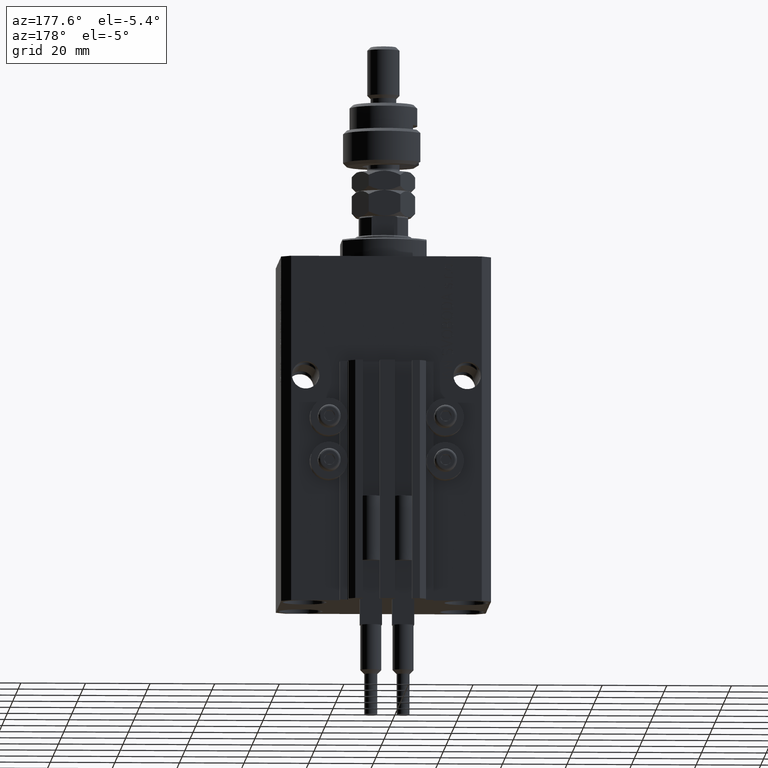
[diagram: clean part render]
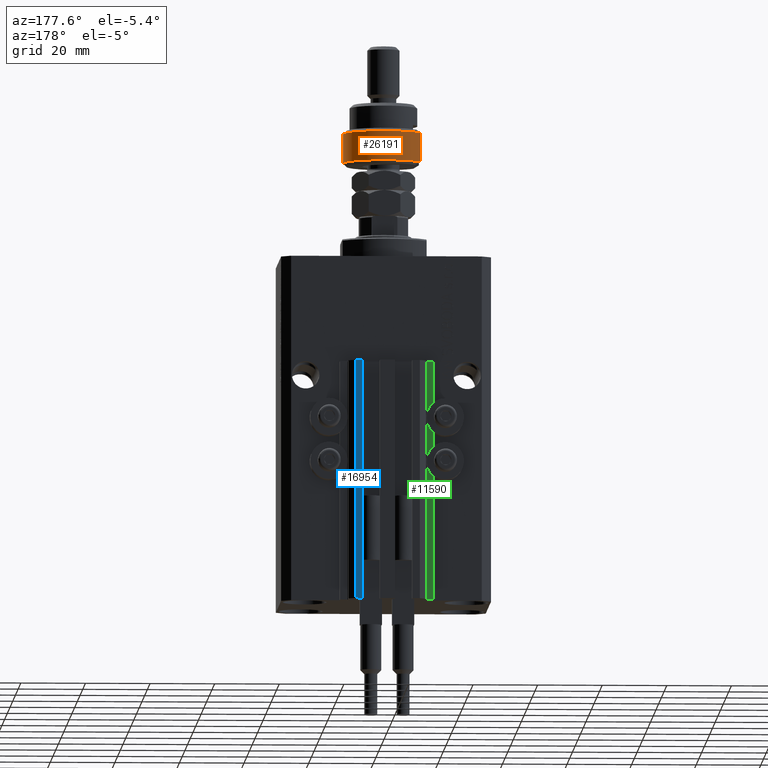
[diagram: same view with three faces highlighted in distinct colors, each labeled with its STEP entity id]
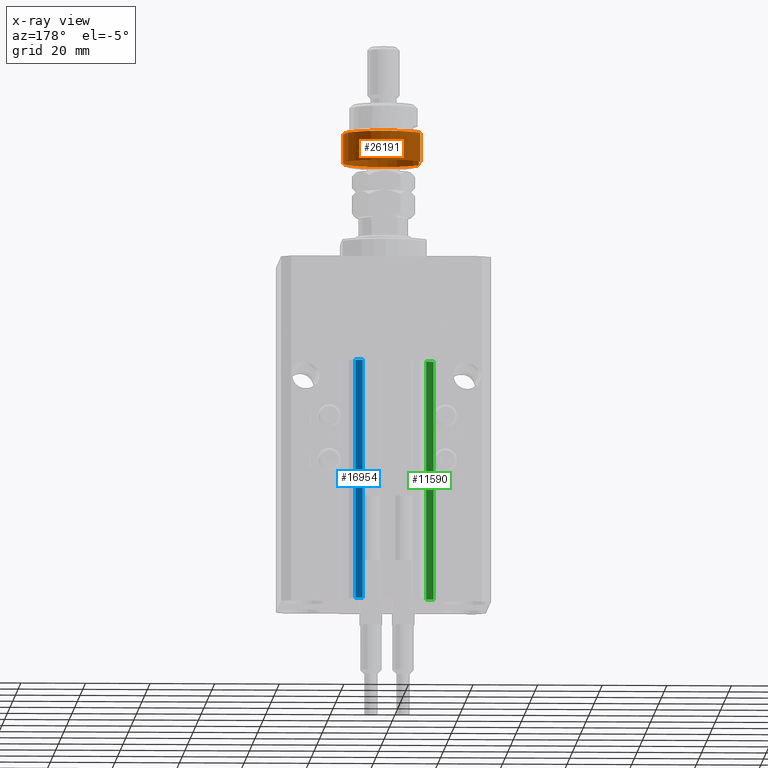
[diagram: x-ray of the same camera — body ghosted, the three highlighted faces saturated]
A machine part, auxiliary view with three faces highlighted in distinct colors.
The next image is the same camera in x-ray (body ghosted, the three faces saturated) — at least one of them is partly hidden behind the body in this view.
Their STEP definitions:

[orange] entity #26191 — the highlighted cylindrical surface (partial cylindrical patch) has radius 12.5 mm, axis along (-0, -0, -1).
#654 = CARTESIAN_POINT ( 'NONE',  ( 0.000000000000000000, 0.000000000000000000, 0.9999999999999956701 ) ) ;
#1412 = DIRECTION ( 'NONE',  ( -0.000000000000000000, -0.000000000000000000, 1.000000000000000000 ) ) ;
#1427 = VERTEX_POINT ( 'NONE', #45096 ) ;
#3541 = CARTESIAN_POINT ( 'NONE',  ( 0.000000000000000000, 0.000000000000000000, 0.9999999999999956701 ) ) ;
#5428 = DIRECTION ( 'NONE',  ( -0.000000000000000000, -0.000000000000000000, -1.000000000000000000 ) ) ;
#8626 = VERTEX_POINT ( 'NONE', #16693 ) ;
#11574 = DIRECTION ( 'NONE',  ( -0.000000000000000000, -0.000000000000000000, -1.000000000000000000 ) ) ;
#12813 = EDGE_LOOP ( 'NONE', ( #49277, #32848, #45773, #14371, #16661 ) ) ;
#13000 = VERTEX_POINT ( 'NONE', #26528 ) ;
#14371 = ORIENTED_EDGE ( 'NONE', *, *, #30370, .T. ) ;
#15234 = AXIS2_PLACEMENT_3D ( 'NONE', #654, #1412, #32517 ) ;
#15689 = AXIS2_PLACEMENT_3D ( 'NONE', #38623, #42723, #42983 ) ;
#16661 = ORIENTED_EDGE ( 'NONE', *, *, #36678, .T. ) ;
#16693 = CARTESIAN_POINT ( 'NONE',  ( -11.22497216032182443, 5.500000000000000000, 10.00000000000000000 ) ) ;
#17099 = DIRECTION ( 'NONE',  ( 1.000000000000000000, 0.000000000000000000, 0.000000000000000000 ) ) ;
#18252 = EDGE_CURVE ( 'NONE', #8626, #37642, #41377, .T. ) ;
#20694 = CARTESIAN_POINT ( 'NONE',  ( 0.000000000000000000, 0.000000000000000000, 10.00000000000000000 ) ) ;
#24724 = AXIS2_PLACEMENT_3D ( 'NONE', #20694, #24817, #17099 ) ;
#24817 = DIRECTION ( 'NONE',  ( 0.000000000000000000, 0.000000000000000000, -1.000000000000000000 ) ) ;
#24967 = CARTESIAN_POINT ( 'NONE',  ( -11.22497216032182443, 5.500000000000000000, 12.50000000000000000 ) ) ;
#26088 = CARTESIAN_POINT ( 'NONE',  ( -11.22497216032182443, 5.500000000000000000, 0.9999999999999956701 ) ) ;
#26191 = ADVANCED_FACE ( 'NONE', ( #47091 ), #27066, .T. ) ;
#26194 = DIRECTION ( 'NONE',  ( -0.000000000000000000, -0.000000000000000000, 1.000000000000000000 ) ) ;
#26528 = CARTESIAN_POINT ( 'NONE',  ( -11.22497216032182088, -5.500000000000007105, 10.00000000000000000 ) ) ;
#26977 = EDGE_CURVE ( 'NONE', #8626, #13000, #28948, .T. ) ;
#27066 = CYLINDRICAL_SURFACE ( 'NONE', #15689, 12.50000000000000000 ) ;
#28948 = CIRCLE ( 'NONE', #24724, 12.50000000000000000 ) ;
#29016 = VECTOR ( 'NONE', #11574, 1000.000000000000000 ) ;
#30370 = EDGE_CURVE ( 'NONE', #41658, #1427, #42074, .T. ) ;
#31070 = EDGE_CURVE ( 'NONE', #13000, #41658, #31116, .T. ) ;
#31116 = LINE ( 'NONE', #46773, #29016 ) ;
#32517 = DIRECTION ( 'NONE',  ( 1.000000000000000000, 0.000000000000000000, 0.000000000000000000 ) ) ;
#32848 = ORIENTED_EDGE ( 'NONE', *, *, #26977, .T. ) ;
#34097 = CIRCLE ( 'NONE', #15234, 12.50000000000000000 ) ;
#36678 = EDGE_CURVE ( 'NONE', #1427, #37642, #34097, .T. ) ;
#37642 = VERTEX_POINT ( 'NONE', #26088 ) ;
#38623 = CARTESIAN_POINT ( 'NONE',  ( 0.000000000000000000, 0.000000000000000000, 11.00000000000000000 ) ) ;
#41377 = LINE ( 'NONE', #24967, #50167 ) ;
#41548 = CARTESIAN_POINT ( 'NONE',  ( -11.22497216032182088, -5.500000000000007105, 0.9999999999999956701 ) ) ;
#41603 = DIRECTION ( 'NONE',  ( 1.000000000000000000, 0.000000000000000000, 0.000000000000000000 ) ) ;
#41658 = VERTEX_POINT ( 'NONE', #41548 ) ;
#42074 = CIRCLE ( 'NONE', #46172, 12.50000000000000000 ) ;
#42723 = DIRECTION ( 'NONE',  ( -0.000000000000000000, -0.000000000000000000, -1.000000000000000000 ) ) ;
#42983 = DIRECTION ( 'NONE',  ( -1.000000000000000000, 0.000000000000000000, 0.000000000000000000 ) ) ;
#45096 = CARTESIAN_POINT ( 'NONE',  ( 12.50000000000000000, 0.000000000000000000, 0.9999999999999956701 ) ) ;
#45773 = ORIENTED_EDGE ( 'NONE', *, *, #31070, .T. ) ;
#46172 = AXIS2_PLACEMENT_3D ( 'NONE', #3541, #26194, #41603 ) ;
#46773 = CARTESIAN_POINT ( 'NONE',  ( -11.22497216032182088, -5.500000000000007105, 12.50000000000000000 ) ) ;
#47091 = FACE_OUTER_BOUND ( 'NONE', #12813, .T. ) ;
#49277 = ORIENTED_EDGE ( 'NONE', *, *, #18252, .F. ) ;
#50167 = VECTOR ( 'NONE', #5428, 1000.000000000000000 ) ;

[blue] entity #16954 — the highlighted planar face has unit normal (-0, 1, 0).
#51 = LINE ( 'NONE', #19563, #33376 ) ;
#3588 = LINE ( 'NONE', #19263, #45769 ) ;
#4114 = DIRECTION ( 'NONE',  ( 0.000000000000000000, 0.000000000000000000, 1.000000000000000000 ) ) ;
#5231 = DIRECTION ( 'NONE',  ( -1.000000000000000000, -1.476360405086644852E-15, 0.000000000000000000 ) ) ;
#8511 = LINE ( 'NONE', #24196, #31309 ) ;
#8834 = LINE ( 'NONE', #12946, #25497 ) ;
#9489 = VERTEX_POINT ( 'NONE', #30854 ) ;
#10667 = PLANE ( 'NONE',  #42731 ) ;
#12946 = CARTESIAN_POINT ( 'NONE',  ( 9.999999999999994671, 30.49999999999949551, -107.0000000000000000 ) ) ;
#15098 = EDGE_CURVE ( 'NONE', #19560, #9489, #8834, .T. ) ;
#16471 = ORIENTED_EDGE ( 'NONE', *, *, #45602, .T. ) ;
#16954 = ADVANCED_FACE ( 'NONE', ( #29972 ), #10667, .T. ) ;
#18095 = EDGE_CURVE ( 'NONE', #31521, #40477, #8511, .T. ) ;
#19263 = CARTESIAN_POINT ( 'NONE',  ( 7.649999999999995026, 30.49999999999949196, -107.0000000000000000 ) ) ;
#19560 = VERTEX_POINT ( 'NONE', #25115 ) ;
#19563 = CARTESIAN_POINT ( 'NONE',  ( 9.999999999999994671, 30.49999999999949551, -107.0000000000000000 ) ) ;
#19990 = CARTESIAN_POINT ( 'NONE',  ( 9.999999999999994671, 30.49999999999949551, -33.00000000000000000 ) ) ;
#20339 = DIRECTION ( 'NONE',  ( -1.000000000000000000, -1.476360405086644852E-15, 0.000000000000000000 ) ) ;
#22755 = DIRECTION ( 'NONE',  ( -1.476360405086644852E-15, 1.000000000000000000, 0.000000000000000000 ) ) ;
#22897 = ORIENTED_EDGE ( 'NONE', *, *, #38834, .F. ) ;
#23004 = DIRECTION ( 'NONE',  ( -1.000000000000000000, -1.476360405086644852E-15, 0.000000000000000000 ) ) ;
#23996 = EDGE_LOOP ( 'NONE', ( #25771, #22897, #39051, #16471 ) ) ;
#24196 = CARTESIAN_POINT ( 'NONE',  ( 9.999999999999994671, 30.49999999999949551, -33.00000000000000000 ) ) ;
#25115 = CARTESIAN_POINT ( 'NONE',  ( 9.999999999999994671, 30.49999999999949551, -107.0000000000000000 ) ) ;
#25497 = VECTOR ( 'NONE', #5231, 1000.000000000000000 ) ;
#25771 = ORIENTED_EDGE ( 'NONE', *, *, #18095, .F. ) ;
#26367 = CARTESIAN_POINT ( 'NONE',  ( 9.999999999999994671, 30.49999999999949551, -107.0000000000000000 ) ) ;
#29972 = FACE_OUTER_BOUND ( 'NONE', #23996, .T. ) ;
#30854 = CARTESIAN_POINT ( 'NONE',  ( 7.649999999999995026, 30.49999999999949196, -107.0000000000000000 ) ) ;
#31309 = VECTOR ( 'NONE', #20339, 1000.000000000000000 ) ;
#31521 = VERTEX_POINT ( 'NONE', #19990 ) ;
#33376 = VECTOR ( 'NONE', #39362, 1000.000000000000000 ) ;
#38834 = EDGE_CURVE ( 'NONE', #19560, #31521, #51, .T. ) ;
#39051 = ORIENTED_EDGE ( 'NONE', *, *, #15098, .T. ) ;
#39362 = DIRECTION ( 'NONE',  ( 0.000000000000000000, 0.000000000000000000, 1.000000000000000000 ) ) ;
#40477 = VERTEX_POINT ( 'NONE', #42034 ) ;
#42034 = CARTESIAN_POINT ( 'NONE',  ( 7.649999999999995026, 30.49999999999949196, -33.00000000000000000 ) ) ;
#42731 = AXIS2_PLACEMENT_3D ( 'NONE', #26367, #22755, #23004 ) ;
#45602 = EDGE_CURVE ( 'NONE', #9489, #40477, #3588, .T. ) ;
#45769 = VECTOR ( 'NONE', #4114, 1000.000000000000000 ) ;

[green] entity #11590 — the highlighted planar face has unit normal (0, 1, 0).
#406 = ORIENTED_EDGE ( 'NONE', *, *, #16287, .T. ) ;
#2397 = ORIENTED_EDGE ( 'NONE', *, *, #32248, .F. ) ;
#4205 = EDGE_CURVE ( 'NONE', #19283, #42583, #35839, .T. ) ;
#9261 = FACE_OUTER_BOUND ( 'NONE', #43753, .T. ) ;
#10131 = VECTOR ( 'NONE', #28573, 1000.000000000000000 ) ;
#10226 = CARTESIAN_POINT ( 'NONE',  ( -12.20000000000000107, 24.99999999999948841, -107.0000000000000000 ) ) ;
#11590 = ADVANCED_FACE ( 'NONE', ( #9261 ), #21348, .T. ) ;
#12048 = VECTOR ( 'NONE', #50011, 1000.000000000000000 ) ;
#12529 = VECTOR ( 'NONE', #37006, 1000.000000000000000 ) ;
#14012 = VERTEX_POINT ( 'NONE', #34002 ) ;
#16287 = EDGE_CURVE ( 'NONE', #42583, #45868, #17014, .T. ) ;
#16591 = ORIENTED_EDGE ( 'NONE', *, *, #4205, .T. ) ;
#17014 = LINE ( 'NONE', #31945, #44354 ) ;
#17973 = LINE ( 'NONE', #48561, #12529 ) ;
#19283 = VERTEX_POINT ( 'NONE', #10226 ) ;
#21348 = PLANE ( 'NONE',  #35980 ) ;
#28573 = DIRECTION ( 'NONE',  ( 0.000000000000000000, 0.000000000000000000, 1.000000000000000000 ) ) ;
#29069 = CARTESIAN_POINT ( 'NONE',  ( -12.20000000000000107, 24.99999999999948841, -107.0000000000000000 ) ) ;
#30274 = EDGE_CURVE ( 'NONE', #14012, #45868, #17973, .T. ) ;
#31740 = CARTESIAN_POINT ( 'NONE',  ( -12.20000000000000107, 24.99999999999948841, -107.0000000000000000 ) ) ;
#31945 = CARTESIAN_POINT ( 'NONE',  ( -14.50000000000000000, 24.99999999999949196, -107.0000000000000000 ) ) ;
#32248 = EDGE_CURVE ( 'NONE', #19283, #14012, #33183, .T. ) ;
#33183 = LINE ( 'NONE', #44224, #10131 ) ;
#33686 = DIRECTION ( 'NONE',  ( -1.000000000000000000, 1.508455196501571232E-15, 0.000000000000000000 ) ) ;
#34002 = CARTESIAN_POINT ( 'NONE',  ( -12.20000000000000107, 24.99999999999948841, -33.00000000000000000 ) ) ;
#34045 = CARTESIAN_POINT ( 'NONE',  ( -14.50000000000000000, 24.99999999999949196, -33.00000000000000000 ) ) ;
#35094 = ORIENTED_EDGE ( 'NONE', *, *, #30274, .F. ) ;
#35839 = LINE ( 'NONE', #31740, #12048 ) ;
#35980 = AXIS2_PLACEMENT_3D ( 'NONE', #29069, #49087, #33686 ) ;
#36536 = DIRECTION ( 'NONE',  ( 0.000000000000000000, 0.000000000000000000, 1.000000000000000000 ) ) ;
#37006 = DIRECTION ( 'NONE',  ( -1.000000000000000000, 1.508455196501571429E-15, 0.000000000000000000 ) ) ;
#38202 = CARTESIAN_POINT ( 'NONE',  ( -14.50000000000000000, 24.99999999999949196, -107.0000000000000000 ) ) ;
#42583 = VERTEX_POINT ( 'NONE', #38202 ) ;
#43753 = EDGE_LOOP ( 'NONE', ( #35094, #2397, #16591, #406 ) ) ;
#44224 = CARTESIAN_POINT ( 'NONE',  ( -12.20000000000000107, 24.99999999999948841, -107.0000000000000000 ) ) ;
#44354 = VECTOR ( 'NONE', #36536, 1000.000000000000000 ) ;
#45868 = VERTEX_POINT ( 'NONE', #34045 ) ;
#48561 = CARTESIAN_POINT ( 'NONE',  ( -12.20000000000000107, 24.99999999999948841, -33.00000000000000000 ) ) ;
#49087 = DIRECTION ( 'NONE',  ( 1.508455196501571232E-15, 1.000000000000000000, -0.000000000000000000 ) ) ;
#50011 = DIRECTION ( 'NONE',  ( -1.000000000000000000, 1.508455196501571429E-15, 0.000000000000000000 ) ) ;